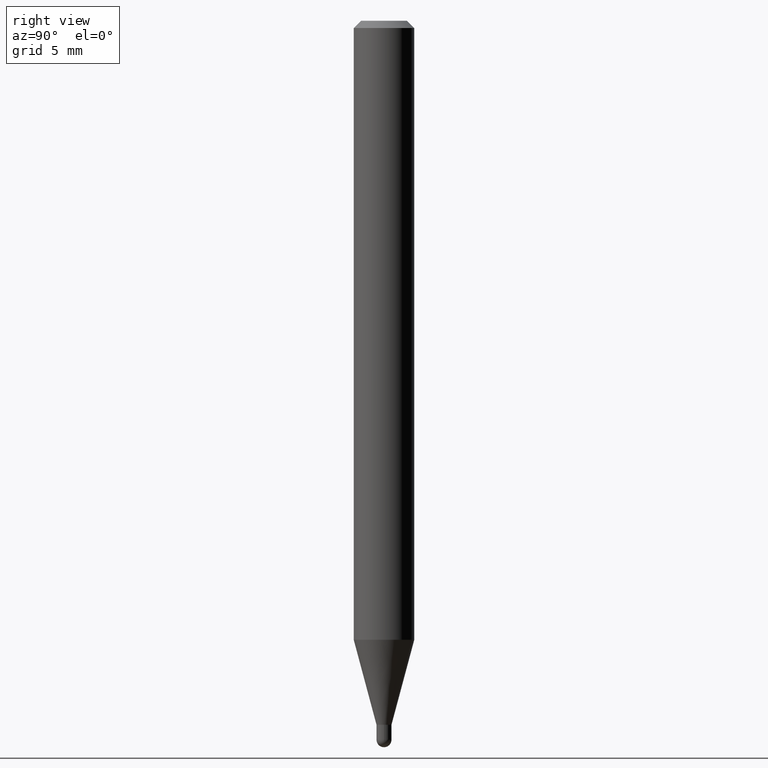
[diagram: clean part render]
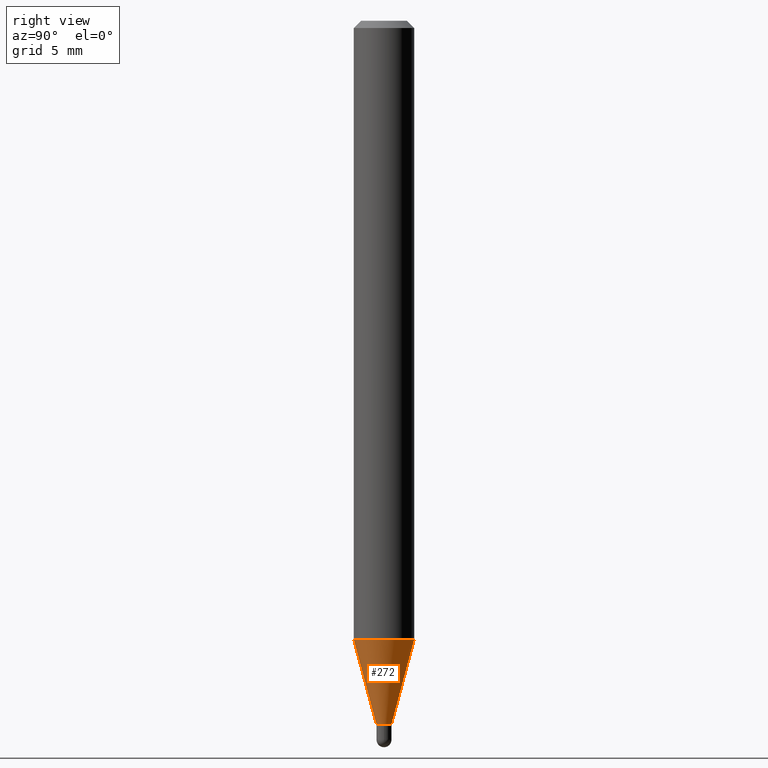
[diagram: same view with one face highlighted and labeled with its STEP entity id]
A machine part, right view. The second image highlights one B-rep face of the part: STEP entity #272.
In plain terms, the highlighted conical surface has half-angle 15 deg.
Its self-contained STEP definition (entity closure, byte-faithful):
#27 = CARTESIAN_POINT ( 'NONE',  ( 1.101341240428524689E-16, 0.01549999999999512185, -1.453500000000000236 ) ) ;
#31 = CONICAL_SURFACE ( 'NONE', #74, 0.01550000000000019765, 0.2617993877991570684 ) ;
#55 = ORIENTED_EDGE ( 'NONE', *, *, #308, .T. ) ;
#74 = AXIS2_PLACEMENT_3D ( 'NONE', #225, #351, #100 ) ;
#100 = DIRECTION ( 'NONE',  ( -6.982962677686266711E-15, -1.000000000000000000, 0.000000000000000000 ) ) ;
#135 = CARTESIAN_POINT ( 'NONE',  ( 3.125532835414998738E-29, -4.462447477132949161E-15, -1.278093612044269189 ) ) ;
#153 = EDGE_CURVE ( 'NONE', #334, #282, #299, .T. ) ;
#167 = VERTEX_POINT ( 'NONE', #397 ) ;
#170 = CARTESIAN_POINT ( 'NONE',  ( 4.440892098500935790E-16, 0.06249999999999551747, -1.278093612044269411 ) ) ;
#180 = EDGE_CURVE ( 'NONE', #167, #334, #431, .T. ) ;
#197 = DIRECTION ( 'NONE',  ( -1.807323732225375893E-15, -0.2588190451025247363, 0.9659258262890673130 ) ) ;
#225 = CARTESIAN_POINT ( 'NONE',  ( 3.554482968590526070E-29, -5.074876634144450327E-15, -1.453500000000000236 ) ) ;
#236 = CARTESIAN_POINT ( 'NONE',  ( -1.082359215041029611E-16, -0.01550000000000527345, -1.453500000000000236 ) ) ;
#240 = VECTOR ( 'NONE', #342, 39.37007874015748854 ) ;
#260 = CARTESIAN_POINT ( 'NONE',  ( 2.771116669464732889E-16, 0.01549999999999512185, -1.453500000000000236 ) ) ;
#269 = ORIENTED_EDGE ( 'NONE', *, *, #153, .F. ) ;
#272 = ADVANCED_FACE ( 'NONE', ( #337 ), #31, .T. ) ;
#282 = VERTEX_POINT ( 'NONE', #170 ) ;
#295 = VERTEX_POINT ( 'NONE', #260 ) ;
#299 = CIRCLE ( 'NONE', #485, 0.06250000000000000000 ) ;
#308 = EDGE_CURVE ( 'NONE', #167, #295, #319, .T. ) ;
#319 = CIRCLE ( 'NONE', #471, 0.01550000000000019765 ) ;
#334 = VERTEX_POINT ( 'NONE', #426 ) ;
#337 = FACE_OUTER_BOUND ( 'NONE', #438, .T. ) ;
#342 = DIRECTION ( 'NONE',  ( 1.839019923739646464E-15, 0.2588190451025315086, 0.9659258262890653146 ) ) ;
#351 = DIRECTION ( 'NONE',  ( -2.445464718672532152E-29, 3.491487192393841779E-15, 1.000000000000000000 ) ) ;
#359 = ORIENTED_EDGE ( 'NONE', *, *, #488, .T. ) ;
#367 = DIRECTION ( 'NONE',  ( -2.445464718672532152E-29, 3.491487192393841779E-15, 1.000000000000000000 ) ) ;
#376 = CARTESIAN_POINT ( 'NONE',  ( 3.554482968590526070E-29, -5.074876634144450327E-15, -1.453500000000000236 ) ) ;
#381 = LINE ( 'NONE', #27, #240 ) ;
#397 = CARTESIAN_POINT ( 'NONE',  ( -1.082359215041029611E-16, -0.01550000000000527345, -1.453500000000000236 ) ) ;
#412 = ORIENTED_EDGE ( 'NONE', *, *, #180, .F. ) ;
#426 = CARTESIAN_POINT ( 'NONE',  ( -4.364351673553605094E-16, -0.06250000000000448253, -1.278093612044268745 ) ) ;
#431 = LINE ( 'NONE', #236, #461 ) ;
#438 = EDGE_LOOP ( 'NONE', ( #55, #359, #269, #412 ) ) ;
#455 = DIRECTION ( 'NONE',  ( -6.982962677686265922E-15, -1.000000000000000000, 4.370956789862821150E-15 ) ) ;
#461 = VECTOR ( 'NONE', #197, 39.37007874015748854 ) ;
#462 = DIRECTION ( 'NONE',  ( -2.445464718672532152E-29, 3.491487192393841779E-15, 1.000000000000000000 ) ) ;
#471 = AXIS2_PLACEMENT_3D ( 'NONE', #376, #367, #482 ) ;
#482 = DIRECTION ( 'NONE',  ( -6.982962677686266711E-15, -1.000000000000000000, 0.000000000000000000 ) ) ;
#485 = AXIS2_PLACEMENT_3D ( 'NONE', #135, #462, #455 ) ;
#488 = EDGE_CURVE ( 'NONE', #295, #282, #381, .T. ) ;